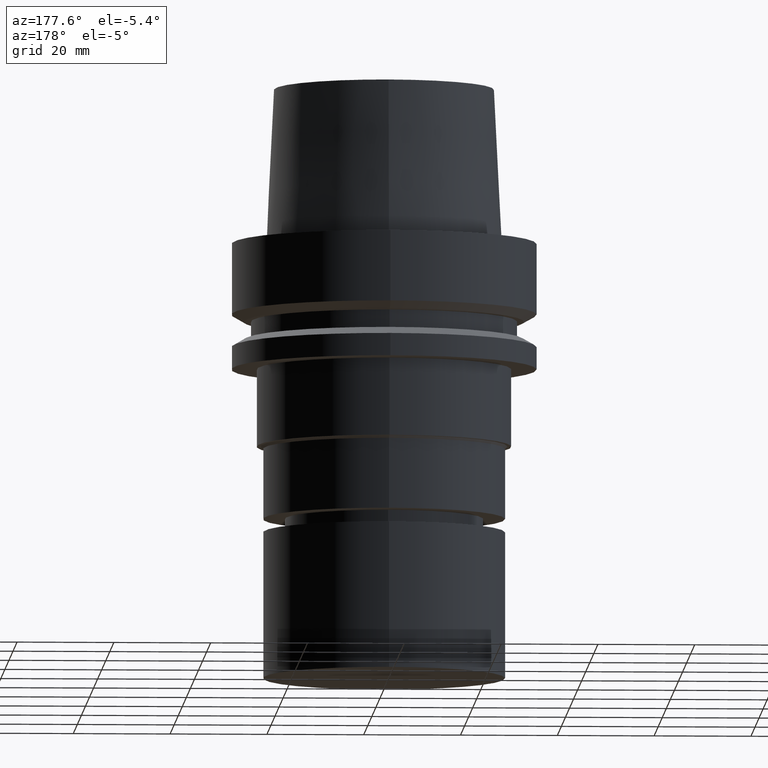
[diagram: clean part render]
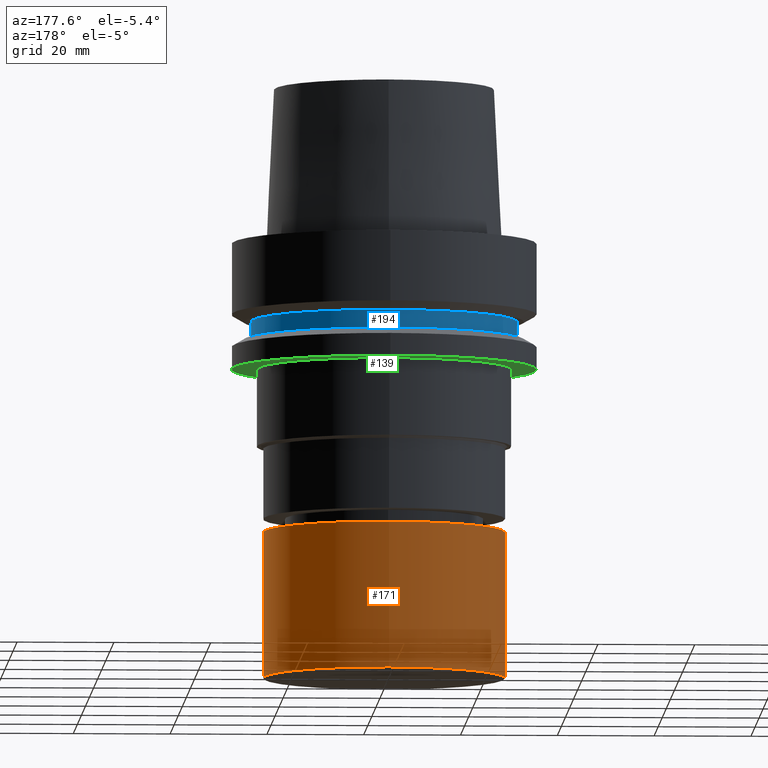
[diagram: same view with three faces highlighted in distinct colors, each labeled with its STEP entity id]
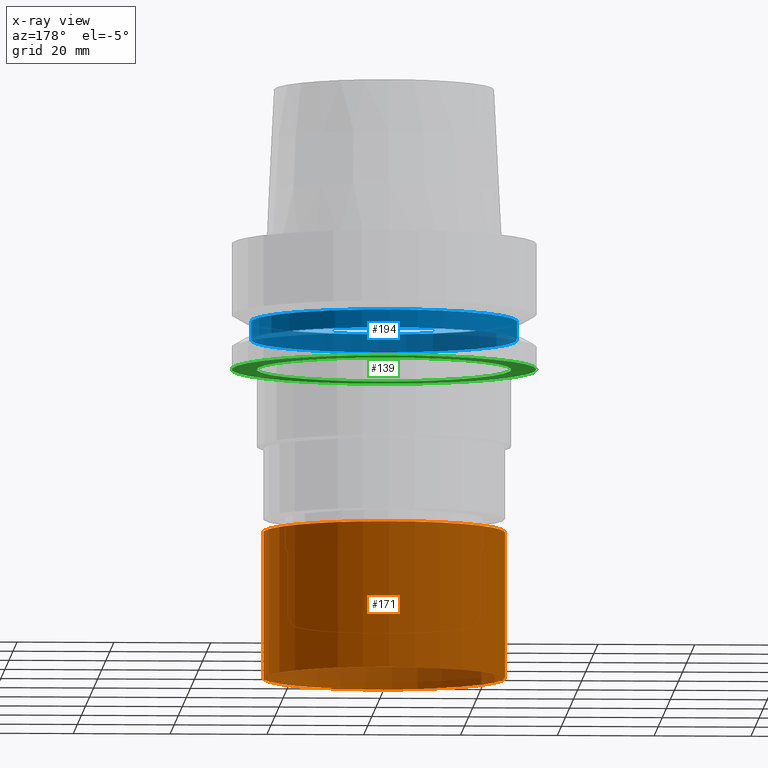
[diagram: x-ray of the same camera — body ghosted, the three highlighted faces saturated]
A machine part, auxiliary view with three faces highlighted in distinct colors.
The next image is the same camera in x-ray (body ghosted, the three faces saturated) — at least one of them is partly hidden behind the body in this view.
Their STEP definitions:

[orange] entity #171 — the highlighted cylindrical surface (bore or boss wall) has radius 25 mm, axis along (0, 0, -1).
#88=EDGE_CURVE('Unnamed[1]',#233,#233,#234,.T.);
#147=EDGE_CURVE('Unnamed[1]',#320,#320,#321,.T.);
#171=ADVANCED_FACE('Unnamed[1]',(#358,#359),#360,.T.);
#233=VERTEX_POINT('',#436);
#234=CIRCLE('',#437,25.0);
#320=VERTEX_POINT('',#545);
#321=CIRCLE('',#546,25.0);
#358=FACE_BOUND('',#592,.T.);
#359=FACE_BOUND('',#593,.T.);
#360=CYLINDRICAL_SURFACE('',#594,25.0);
#436=CARTESIAN_POINT('',(3.66169392945059E-015,25.0,-59.8));
#437=AXIS2_PLACEMENT_3D('',#667,#668,#669);
#545=CARTESIAN_POINT('',(5.51091059616309E-015,25.0,-90.0));
#546=AXIS2_PLACEMENT_3D('',#759,#760,#761);
#592=EDGE_LOOP('',(#802));
#593=EDGE_LOOP('',(#803));
#594=AXIS2_PLACEMENT_3D('',#804,#805,#806);
#667=CARTESIAN_POINT('',(3.66169392945059E-015,7.32338785890117E-015,-59.8));
#668=DIRECTION('',(6.12323399573677E-017,1.22464679914735E-016,-1.0));
#669=DIRECTION('',(-1.23259516440783E-032,1.0,1.22464679914735E-016));
#759=CARTESIAN_POINT('',(5.51091059616309E-015,1.10218211923262E-014,-90.0));
#760=DIRECTION('',(6.12323399573677E-017,1.22464679914735E-016,-1.0));
#761=DIRECTION('',(-1.23259516440783E-032,1.0,1.22464679914735E-016));
#802=ORIENTED_EDGE('',*,*,#147,.F.);
#803=ORIENTED_EDGE('',*,*,#88,.T.);
#804=CARTESIAN_POINT('',(4.58630226280684E-015,9.17260452561367E-015,-74.9));
#805=DIRECTION('',(6.12323399573677E-017,1.22464679914735E-016,-1.0));
#806=DIRECTION('',(-1.23259516440783E-032,1.0,1.22464679914735E-016));

[blue] entity #194 — the highlighted cylindrical surface (bore or boss wall) has radius 27.5 mm, axis along (-0, -0, 1).
#106=EDGE_CURVE('Unnamed[1]',#258,#258,#259,.T.);
#125=EDGE_CURVE('Unnamed[1]',#287,#287,#288,.T.);
#194=ADVANCED_FACE('Unnamed[1]',(#395,#396),#397,.T.);
#258=VERTEX_POINT('',#468);
#259=CIRCLE('',#469,27.5);
#287=VERTEX_POINT('',#504);
#288=CIRCLE('',#505,27.4999999999989);
#395=FACE_BOUND('',#637,.T.);
#396=FACE_BOUND('',#638,.T.);
#397=CYLINDRICAL_SURFACE('',#639,27.4999999999994);
#468=CARTESIAN_POINT('',(9.87371481812537E-016,27.5,-16.1249999999997));
#469=AXIS2_PLACEMENT_3D('',#691,#692,#693);
#504=CARTESIAN_POINT('',(1.21699275665276E-015,27.4999999999989,-19.8750000000013));
#505=AXIS2_PLACEMENT_3D('',#725,#726,#727);
#637=EDGE_LOOP('',(#846));
#638=EDGE_LOOP('',(#847));
#639=AXIS2_PLACEMENT_3D('',#848,#849,#850);
#691=CARTESIAN_POINT('',(9.87371481812538E-016,1.97474296362508E-015,-16.1249999999997));
#692=DIRECTION('',(-6.12323399573677E-017,-1.22464679914735E-016,1.0));
#693=DIRECTION('',(-1.23259516440783E-032,1.0,1.22464679914735E-016));
#725=CARTESIAN_POINT('',(1.21699275665276E-015,2.43398551330552E-015,-19.8750000000013));
#726=DIRECTION('',(-6.12323399573677E-017,-1.22464679914735E-016,1.0));
#727=DIRECTION('',(-1.23259516440783E-032,1.0,1.22464679914735E-016));
#846=ORIENTED_EDGE('',*,*,#106,.F.);
#847=ORIENTED_EDGE('',*,*,#125,.T.);
#848=CARTESIAN_POINT('',(1.10218211923265E-015,2.2043642384653E-015,-18.0000000000005));
#849=DIRECTION('',(-6.12323399573677E-017,-1.22464679914735E-016,1.0));
#850=DIRECTION('',(-1.23259516440783E-032,1.0,1.22464679914735E-016));

[green] entity #139 — the highlighted planar face has unit normal (0, -0, -1).
#139=ADVANCED_FACE('Unnamed[1]',(#307,#308),#309,.T.);
#141=EDGE_CURVE('Unnamed[1]',#311,#311,#312,.T.);
#143=EDGE_CURVE('Unnamed[1]',#314,#314,#315,.T.);
#307=FACE_OUTER_BOUND('',#528,.T.);
#308=FACE_BOUND('',#529,.T.);
#309=PLANE('',#530);
#311=VERTEX_POINT('',#533);
#312=CIRCLE('',#534,26.3);
#314=VERTEX_POINT('',#537);
#315=CIRCLE('',#538,31.4999999999998);
#528=EDGE_LOOP('',(#745));
#529=EDGE_LOOP('',(#746));
#530=AXIS2_PLACEMENT_3D('',#747,#748,#749);
#533=CARTESIAN_POINT('',(1.59204083889154E-015,26.3,-25.9999999999997));
#534=AXIS2_PLACEMENT_3D('',#750,#751,#752);
#537=CARTESIAN_POINT('',(1.59204083889155E-015,31.4999999999998,-25.9999999999999));
#538=AXIS2_PLACEMENT_3D('',#753,#754,#755);
#745=ORIENTED_EDGE('',*,*,#143,.F.);
#746=ORIENTED_EDGE('',*,*,#141,.T.);
#747=CARTESIAN_POINT('',(1.59204083889155E-015,28.8999999999999,-25.9999999999998));
#748=DIRECTION('',(6.12323399573677E-017,-4.01871712910926E-014,-1.0));
#749=DIRECTION('',(-2.45592738169038E-030,-1.0,4.01871712910926E-014));
#750=CARTESIAN_POINT('',(1.59204083889154E-015,3.18408167778308E-015,-25.9999999999997));
#751=DIRECTION('',(-6.12323399573677E-017,-1.22464679914735E-016,1.0));
#752=DIRECTION('',(-1.23259516440783E-032,1.0,1.22464679914735E-016));
#753=CARTESIAN_POINT('',(1.59204083889155E-015,3.1840816777831E-015,-25.9999999999999));
#754=DIRECTION('',(-6.12323399573676E-017,-1.22464679914735E-016,1.0));
#755=DIRECTION('',(-1.23259516440783E-032,1.0,1.22464679914735E-016));